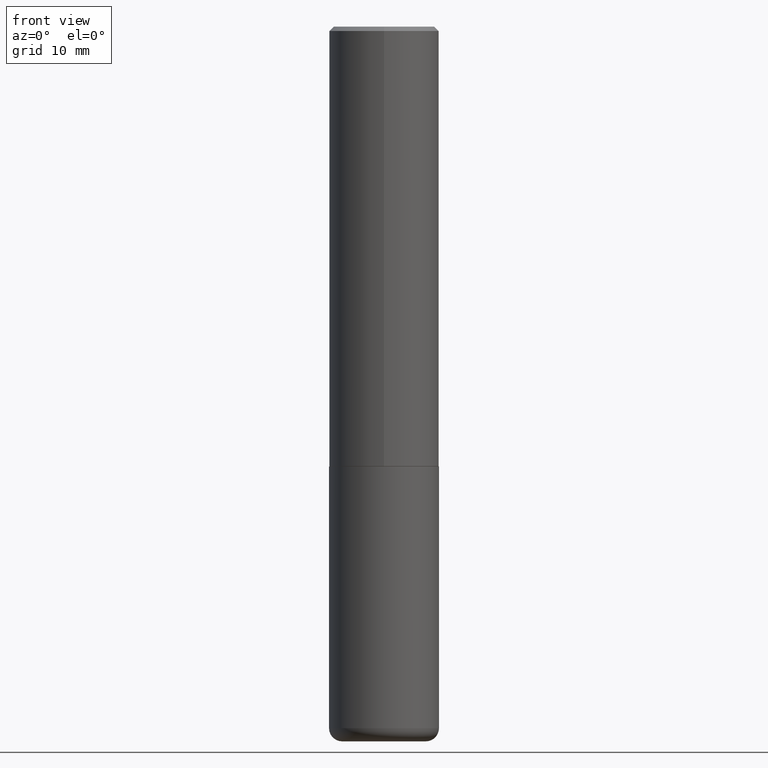
[diagram: clean part render]
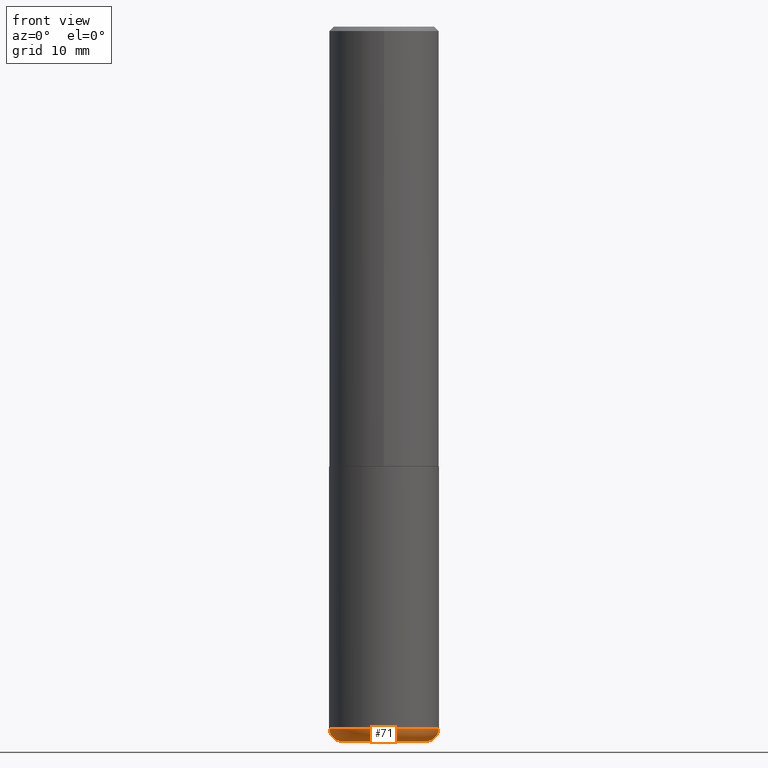
[diagram: same view with one face highlighted and labeled with its STEP entity id]
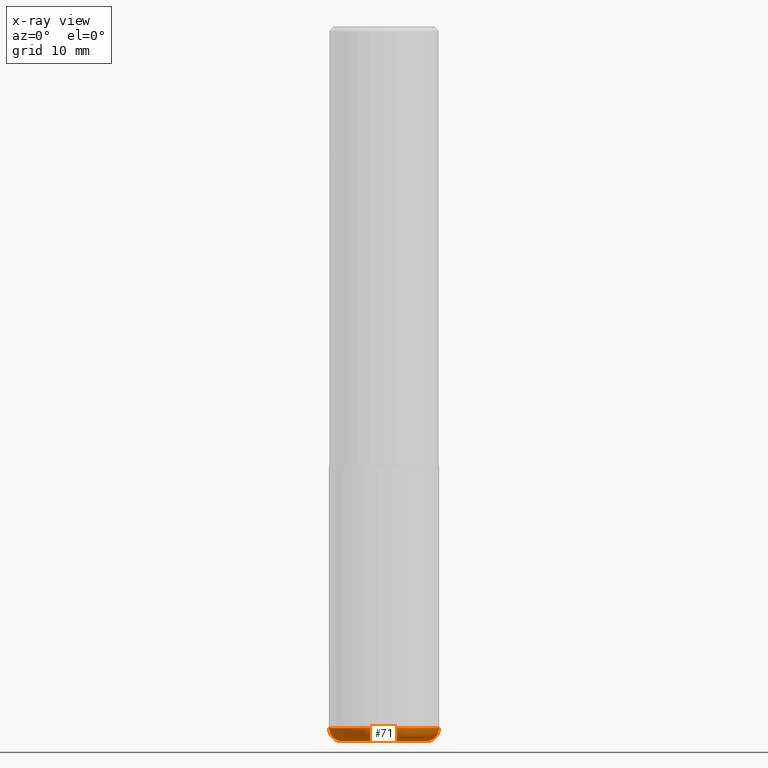
[diagram: x-ray of the same camera — body ghosted, the highlighted face saturated]
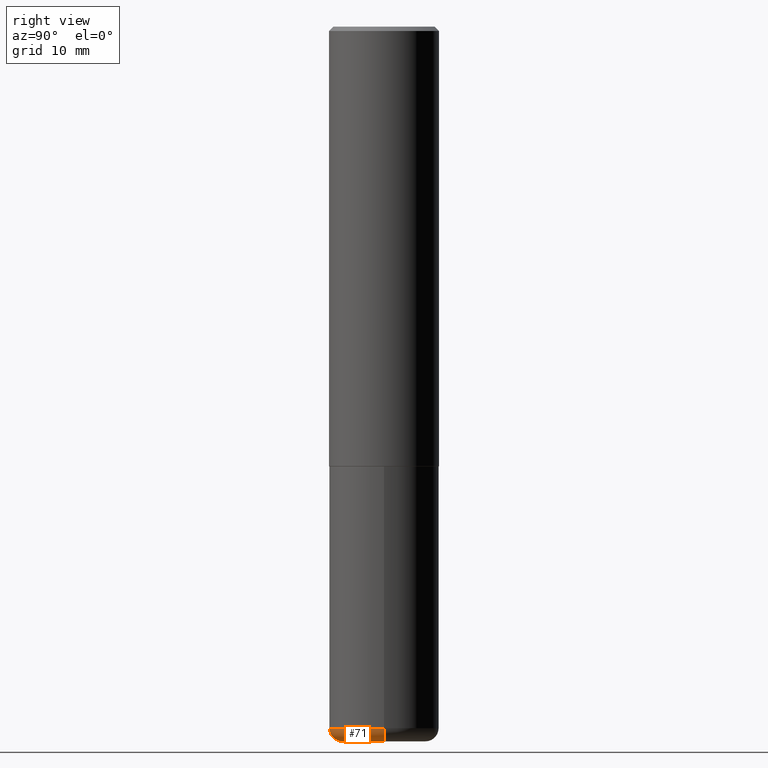
[diagram: same view with one face highlighted and labeled with its STEP entity id]
A machine part, front view. The second image highlights one B-rep face of the part: STEP entity #71.
The next image is the same camera in x-ray: the body ghosted, the highlighted face saturated — about 0% of this face is hidden behind the body in this view.
A second angle (right view) of the same face is appended — the face is thin or edge-on in the first view.
In plain terms, the highlighted toroidal blend (fillet) surface has major radius 4.826 mm and minor (blend) radius 1.524 mm.
Its self-contained STEP definition (entity closure, byte-faithful):
#4 = DIRECTION ( 'NONE',  ( 1.000000000000000000, -6.982962677686274599E-15, 0.000000000000000000 ) ) ;
#30 = CARTESIAN_POINT ( 'NONE',  ( 7.801045491730585789E-29, -1.113782547090963453E-14, -3.189999999999999947 ) ) ;
#43 = DIRECTION ( 'NONE',  ( 1.000000000000000000, -6.982962677686261977E-15, 0.000000000000000000 ) ) ;
#48 = CARTESIAN_POINT ( 'NONE',  ( 0.1899999999999999745, -1.267407726000061289E-14, -3.250000000000000000 ) ) ;
#71 = ADVANCED_FACE ( 'NONE', ( #156 ), #147, .T. ) ;
#87 = ORIENTED_EDGE ( 'NONE', *, *, #125, .F. ) ;
#109 = EDGE_CURVE ( 'NONE', #384, #185, #342, .T. ) ;
#112 = DIRECTION ( 'NONE',  ( -2.445468806185136597E-29, 3.491481338843145583E-15, 1.000000000000000000 ) ) ;
#125 = EDGE_CURVE ( 'NONE', #185, #251, #292, .T. ) ;
#137 = DIRECTION ( 'NONE',  ( -6.982962677686266711E-15, -1.000000000000000000, 3.491481338843145583E-15 ) ) ;
#147 = TOROIDAL_SURFACE ( 'NONE', #238, 0.1899999999999999745, 0.05999999999999995615 ) ;
#156 = FACE_OUTER_BOUND ( 'NONE', #214, .T. ) ;
#166 = DIRECTION ( 'NONE',  ( -2.445468806185136597E-29, 3.491481338843145583E-15, 1.000000000000000000 ) ) ;
#178 = CARTESIAN_POINT ( 'NONE',  ( -0.1899999999999999745, -9.679375892402709259E-15, -3.250000000000000000 ) ) ;
#185 = VERTEX_POINT ( 'NONE', #297 ) ;
#194 = DIRECTION ( 'NONE',  ( 7.105427357601001859E-15, 1.000000000000000000, -3.491481338843145583E-15 ) ) ;
#197 = AXIS2_PLACEMENT_3D ( 'NONE', #302, #137, #4 ) ;
#214 = EDGE_LOOP ( 'NONE', ( #415, #286, #410, #87 ) ) ;
#224 = CARTESIAN_POINT ( 'NONE',  ( 7.801045491730585789E-29, -1.113782547090963453E-14, -3.189999999999999947 ) ) ;
#232 = DIRECTION ( 'NONE',  ( -1.000000000000000000, 7.105427357600997914E-15, 0.000000000000000000 ) ) ;
#237 = CARTESIAN_POINT ( 'NONE',  ( 0.2499999999999999722, -1.288356614033120121E-14, -3.189999999999999947 ) ) ;
#238 = AXIS2_PLACEMENT_3D ( 'NONE', #224, #166, #295 ) ;
#239 = AXIS2_PLACEMENT_3D ( 'NONE', #30, #390, #329 ) ;
#251 = VERTEX_POINT ( 'NONE', #237 ) ;
#254 = EDGE_CURVE ( 'NONE', #346, #251, #388, .T. ) ;
#259 = AXIS2_PLACEMENT_3D ( 'NONE', #417, #194, #232 ) ;
#268 = CIRCLE ( 'NONE', #285, 0.1899999999999999745 ) ;
#285 = AXIS2_PLACEMENT_3D ( 'NONE', #374, #112, #43 ) ;
#286 = ORIENTED_EDGE ( 'NONE', *, *, #404, .T. ) ;
#292 = CIRCLE ( 'NONE', #239, 0.2500000000000000000 ) ;
#295 = DIRECTION ( 'NONE',  ( 1.000000000000000000, -6.982962677686265133E-15, 4.883557194083112340E-29 ) ) ;
#297 = CARTESIAN_POINT ( 'NONE',  ( -0.2499999999999999722, -9.361468631509382488E-15, -3.189999999999999947 ) ) ;
#302 = CARTESIAN_POINT ( 'NONE',  ( 0.1899999999999999745, -1.246458837967002615E-14, -3.189999999999999947 ) ) ;
#329 = DIRECTION ( 'NONE',  ( 1.000000000000000000, -6.982962677686270655E-15, 0.000000000000000000 ) ) ;
#342 = CIRCLE ( 'NONE', #259, 0.05999999999999994227 ) ;
#346 = VERTEX_POINT ( 'NONE', #48 ) ;
#374 = CARTESIAN_POINT ( 'NONE',  ( 7.947773620101693940E-29, -1.134731435124022443E-14, -3.250000000000000000 ) ) ;
#384 = VERTEX_POINT ( 'NONE', #178 ) ;
#388 = CIRCLE ( 'NONE', #197, 0.05999999999999994227 ) ;
#390 = DIRECTION ( 'NONE',  ( -2.445468806185136597E-29, 3.491481338843145583E-15, 1.000000000000000000 ) ) ;
#404 = EDGE_CURVE ( 'NONE', #384, #346, #268, .T. ) ;
#410 = ORIENTED_EDGE ( 'NONE', *, *, #254, .T. ) ;
#415 = ORIENTED_EDGE ( 'NONE', *, *, #109, .F. ) ;
#417 = CARTESIAN_POINT ( 'NONE',  ( -0.1899999999999999745, -9.787794272965444556E-15, -3.189999999999999947 ) ) ;